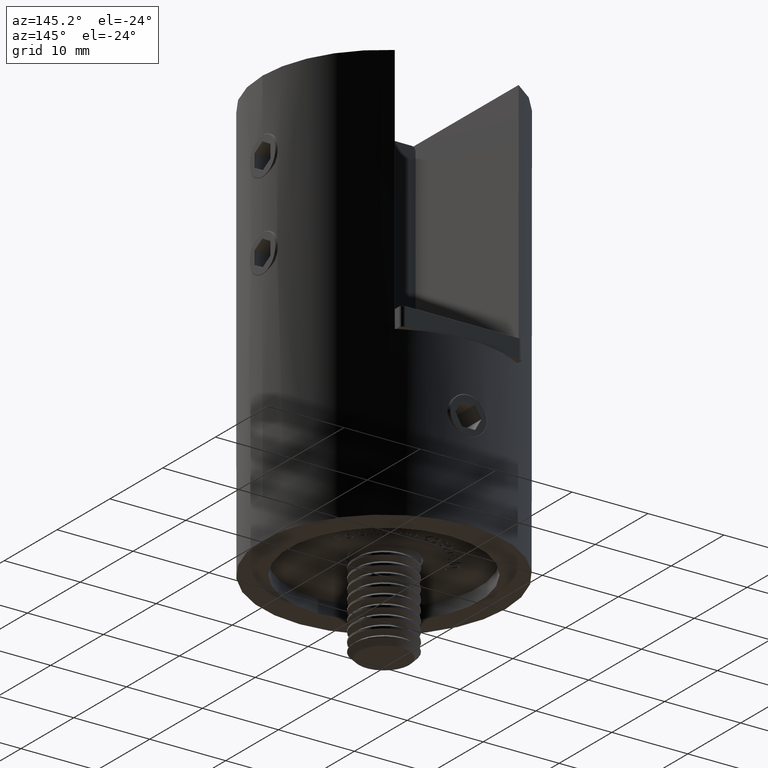
[diagram: clean part render]
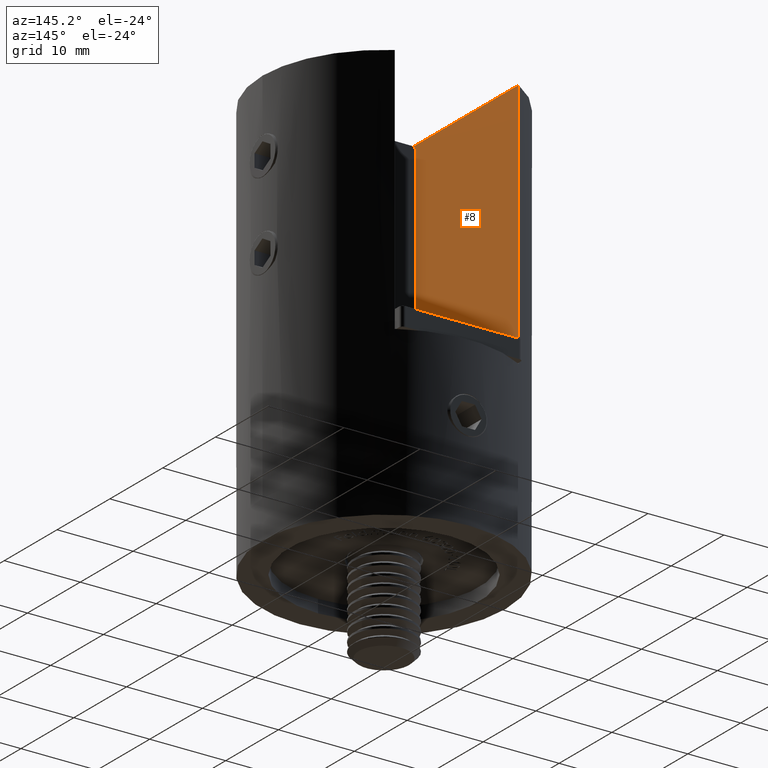
[diagram: same view with one face highlighted and labeled with its STEP entity id]
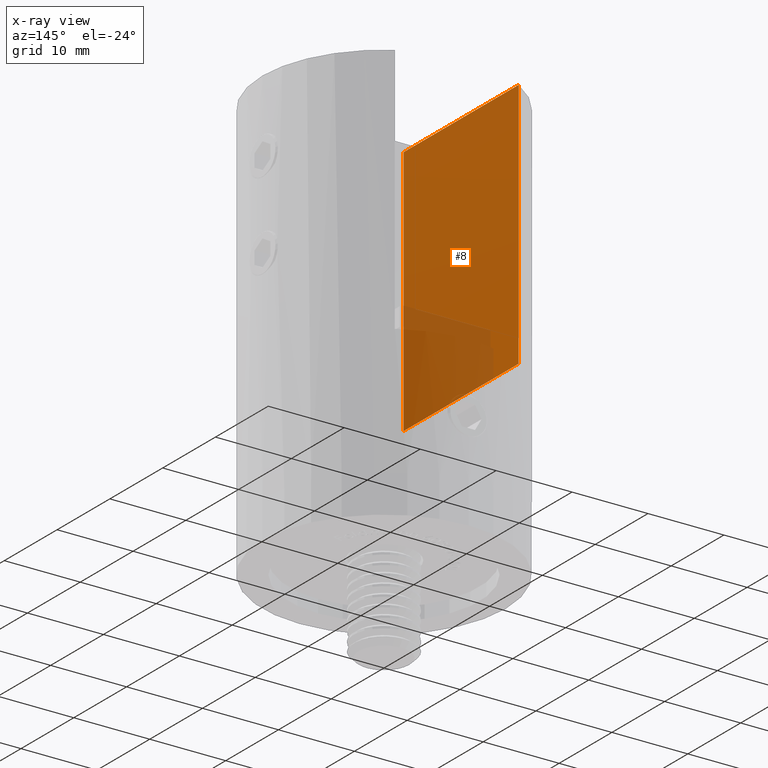
[diagram: x-ray of the same camera — body ghosted, the highlighted face saturated]
A machine part, auxiliary view. The second image highlights one B-rep face of the part: STEP entity #8.
The next image is the same camera in x-ray: the body ghosted, the highlighted face saturated — about 24% of this face is hidden behind the body in this view.
In plain terms, the highlighted planar face has unit normal (-1, 0, 0).
Its self-contained STEP definition (entity closure, byte-faithful):
#8 = ADVANCED_FACE ( 'NONE', ( #11076 ), #12708, .F. ) ;
#1491 = EDGE_CURVE ( 'NONE', #5693, #8667, #3139, .T. ) ;
#1662 = DIRECTION ( 'NONE',  ( -0.000000000000000000, 0.000000000000000000, 1.000000000000000000 ) ) ;
#2331 = VERTEX_POINT ( 'NONE', #2550 ) ;
#2550 = CARTESIAN_POINT ( 'NONE',  ( -8.150000000000000355, -8.000000000000000000, 0.000000000000000000 ) ) ;
#2994 = ORIENTED_EDGE ( 'NONE', *, *, #11520, .F. ) ;
#3139 = LINE ( 'NONE', #16835, #10564 ) ;
#3760 = EDGE_CURVE ( 'NONE', #8667, #2331, #11513, .T. ) ;
#4174 = CARTESIAN_POINT ( 'NONE',  ( -8.150000000000000355, 13.76871453694933578, -33.00000000000000000 ) ) ;
#5693 = VERTEX_POINT ( 'NONE', #4174 ) ;
#5711 = LINE ( 'NONE', #7825, #16300 ) ;
#6115 = VECTOR ( 'NONE', #6879, 1000.000000000000000 ) ;
#6417 = ORIENTED_EDGE ( 'NONE', *, *, #1491, .T. ) ;
#6879 = DIRECTION ( 'NONE',  ( -0.000000000000000000, 1.000000000000000000, -0.000000000000000000 ) ) ;
#7210 = ORIENTED_EDGE ( 'NONE', *, *, #18923, .T. ) ;
#7668 = DIRECTION ( 'NONE',  ( 0.000000000000000000, 0.000000000000000000, 1.000000000000000000 ) ) ;
#7825 = CARTESIAN_POINT ( 'NONE',  ( -8.150000000000000355, -8.000000000000000000, 9.000000000000003553 ) ) ;
#8282 = CARTESIAN_POINT ( 'NONE',  ( -8.150000000000000355, -8.000000000000000000, -33.00000000000000000 ) ) ;
#8313 = VERTEX_POINT ( 'NONE', #8282 ) ;
#8667 = VERTEX_POINT ( 'NONE', #13555 ) ;
#10061 = CARTESIAN_POINT ( 'NONE',  ( -8.150000000000000355, -8.000000000000000000, -33.00000000000000000 ) ) ;
#10564 = VECTOR ( 'NONE', #7668, 1000.000000000000000 ) ;
#11076 = FACE_OUTER_BOUND ( 'NONE', #18555, .T. ) ;
#11513 = LINE ( 'NONE', #17322, #18199 ) ;
#11520 = EDGE_CURVE ( 'NONE', #8313, #2331, #5711, .T. ) ;
#12708 = PLANE ( 'NONE',  #12904 ) ;
#12770 = DIRECTION ( 'NONE',  ( -1.000000000000000000, 0.000000000000000000, -0.000000000000000000 ) ) ;
#12904 = AXIS2_PLACEMENT_3D ( 'NONE', #17581, #12770, #1662 ) ;
#13555 = CARTESIAN_POINT ( 'NONE',  ( -8.150000000000000355, 13.76871453694933578, 0.000000000000000000 ) ) ;
#14491 = LINE ( 'NONE', #10061, #6115 ) ;
#15673 = DIRECTION ( 'NONE',  ( -0.000000000000000000, -0.000000000000000000, 1.000000000000000000 ) ) ;
#16300 = VECTOR ( 'NONE', #15673, 1000.000000000000000 ) ;
#16789 = ORIENTED_EDGE ( 'NONE', *, *, #3760, .T. ) ;
#16835 = CARTESIAN_POINT ( 'NONE',  ( -8.150000000000000355, 13.76871453694933578, -50.00000000000000000 ) ) ;
#17322 = CARTESIAN_POINT ( 'NONE',  ( -8.150000000000000355, 0.000000000000000000, 0.000000000000000000 ) ) ;
#17581 = CARTESIAN_POINT ( 'NONE',  ( -8.150000000000000355, -8.000000000000000000, 9.000000000000003553 ) ) ;
#18199 = VECTOR ( 'NONE', #20343, 1000.000000000000000 ) ;
#18555 = EDGE_LOOP ( 'NONE', ( #6417, #16789, #2994, #7210 ) ) ;
#18923 = EDGE_CURVE ( 'NONE', #8313, #5693, #14491, .T. ) ;
#20343 = DIRECTION ( 'NONE',  ( 0.000000000000000000, -1.000000000000000000, 0.000000000000000000 ) ) ;